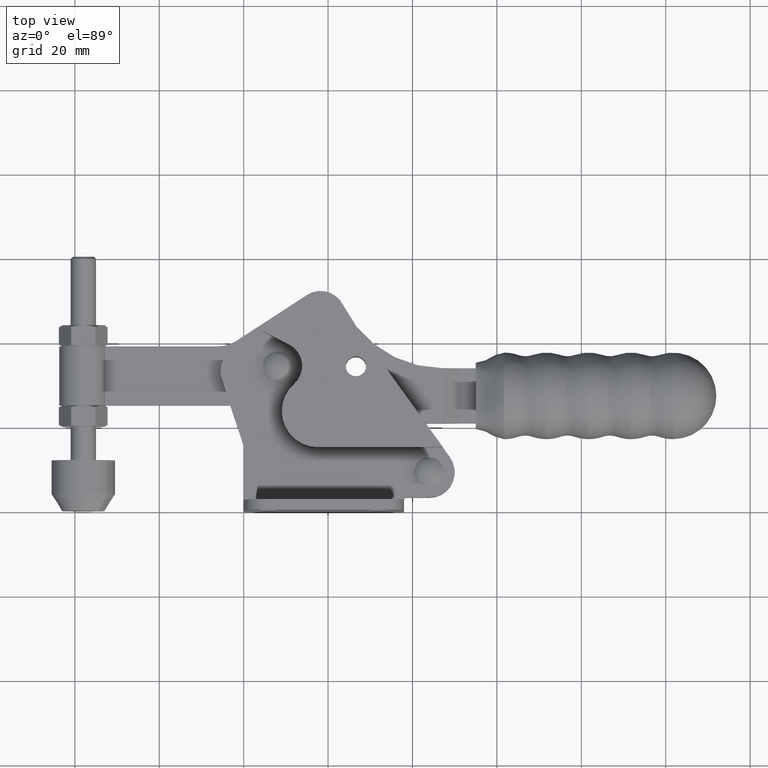
[diagram: clean part render]
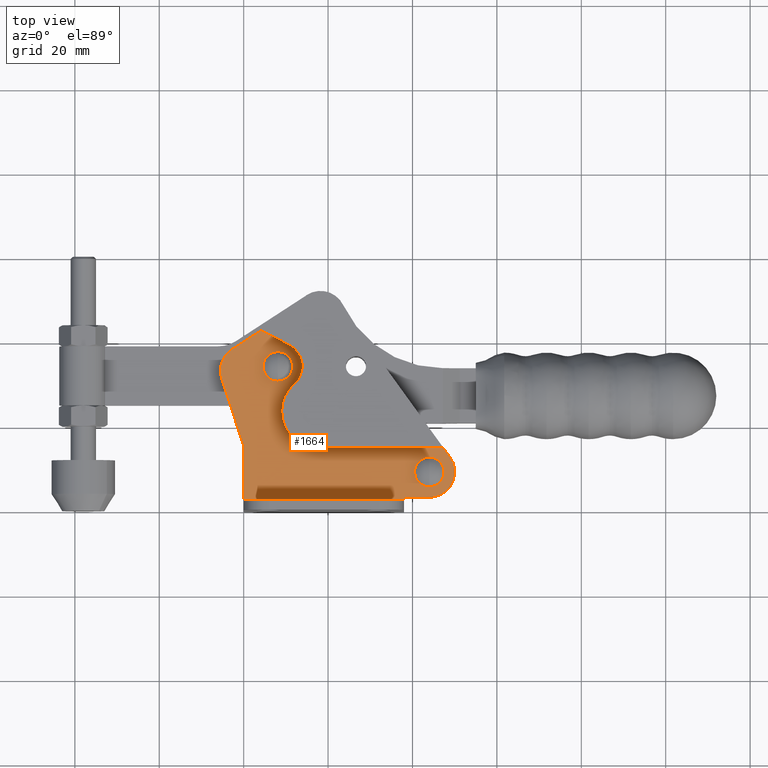
[diagram: same view with one face highlighted and labeled with its STEP entity id]
A machine part, top view. The second image highlights one B-rep face of the part: STEP entity #1664.
In plain terms, the highlighted planar face has unit normal (0, 0, 1).
Its self-contained STEP definition (entity closure, byte-faithful):
#56 = VECTOR ( 'NONE', #9937, 1000.000000000000100 ) ;
#58 = FACE_OUTER_BOUND ( 'NONE', #1267, .T. ) ;
#98 = CIRCLE ( 'NONE', #8140, 3.500000000000003100 ) ;
#116 = DIRECTION ( 'NONE',  ( 1.000000000000000000, 0.0000000000000000000, 0.0000000000000000000 ) ) ;
#123 = ORIENTED_EDGE ( 'NONE', *, *, #8248, .T. ) ;
#280 = CARTESIAN_POINT ( 'NONE',  ( 0.4999999999999726900, 33.19999999999998200, 5.000000000000000900 ) ) ;
#297 = VERTEX_POINT ( 'NONE', #5469 ) ;
#358 = DIRECTION ( 'NONE',  ( 1.000000000000000000, 0.0000000000000000000, 0.0000000000000000000 ) ) ;
#573 = LINE ( 'NONE', #3207, #4635 ) ;
#659 = EDGE_CURVE ( 'NONE', #8755, #3497, #9157, .T. ) ;
#815 = EDGE_CURVE ( 'NONE', #10548, #3677, #8370, .T. ) ;
#837 = ORIENTED_EDGE ( 'NONE', *, *, #9193, .F. ) ;
#896 = VERTEX_POINT ( 'NONE', #1263 ) ;
#1007 = VERTEX_POINT ( 'NONE', #9507 ) ;
#1109 = DIRECTION ( 'NONE',  ( 1.000000000000000000, 0.0000000000000000000, 0.0000000000000000000 ) ) ;
#1263 = CARTESIAN_POINT ( 'NONE',  ( 17.51129640379045300, 14.99999999999998600, 5.000000000000000900 ) ) ;
#1267 = EDGE_LOOP ( 'NONE', ( #10223, #123, #7517, #9885, #4937, #7709, #1524, #8971, #6254, #8271, #3843, #2996, #7690, #5909, #4685, #6601 ) ) ;
#1299 = DIRECTION ( 'NONE',  ( 0.0000000000000000000, 0.0000000000000000000, 1.000000000000000000 ) ) ;
#1318 = AXIS2_PLACEMENT_3D ( 'NONE', #9525, #4605, #10342 ) ;
#1348 = LINE ( 'NONE', #1998, #9535 ) ;
#1477 = CARTESIAN_POINT ( 'NONE',  ( 11.89754065416101400, 29.88245614035087200, 5.000000000000000900 ) ) ;
#1524 = ORIENTED_EDGE ( 'NONE', *, *, #10585, .T. ) ;
#1583 = VERTEX_POINT ( 'NONE', #8027 ) ;
#1641 = EDGE_CURVE ( 'NONE', #7242, #10133, #8717, .T. ) ;
#1664 = ADVANCED_FACE ( 'NONE', ( #2187, #8464, #58 ), #8167, .T. ) ;
#1687 = DIRECTION ( 'NONE',  ( 0.0000000000000000000, 0.0000000000000000000, 1.000000000000000000 ) ) ;
#1693 = CIRCLE ( 'NONE', #5315, 3.500000000000003100 ) ;
#1797 = AXIS2_PLACEMENT_3D ( 'NONE', #7180, #2256, #8005 ) ;
#1883 = VERTEX_POINT ( 'NONE', #2693 ) ;
#1998 = CARTESIAN_POINT ( 'NONE',  ( 0.0000000000000000000, 15.50000000000004100, 5.000000000000000900 ) ) ;
#2036 = CARTESIAN_POINT ( 'NONE',  ( 17.51129640379045300, 23.49999999999999300, 5.000000000000000900 ) ) ;
#2060 = EDGE_CURVE ( 'NONE', #896, #1583, #9891, .T. ) ;
#2069 = DIRECTION ( 'NONE',  ( -0.0000000000000000000, -0.0000000000000000000, -1.000000000000000000 ) ) ;
#2100 = CARTESIAN_POINT ( 'NONE',  ( 17.51129640379045300, 14.99999999999998600, 5.000000000000000900 ) ) ;
#2185 = LINE ( 'NONE', #8275, #56 ) ;
#2187 = FACE_BOUND ( 'NONE', #10187, .T. ) ;
#2188 = CARTESIAN_POINT ( 'NONE',  ( 8.099999999999967700, 34.19999999999998200, 4.999999999999999100 ) ) ;
#2208 = CARTESIAN_POINT ( 'NONE',  ( 8.099999999999967700, 37.69999999999998200, 4.999999999999999100 ) ) ;
#2256 = DIRECTION ( 'NONE',  ( 0.0000000000000000000, 0.0000000000000000000, 1.000000000000000000 ) ) ;
#2296 = ORIENTED_EDGE ( 'NONE', *, *, #5736, .F. ) ;
#2298 = CARTESIAN_POINT ( 'NONE',  ( -2.767834210090219600, 38.23202340767253600, 5.000000000000000900 ) ) ;
#2418 = CARTESIAN_POINT ( 'NONE',  ( 38.49999999999992200, 2.699999999999980200, 5.000000000000000900 ) ) ;
#2483 = AXIS2_PLACEMENT_3D ( 'NONE', #8283, #3376, #9122 ) ;
#2502 = EDGE_CURVE ( 'NONE', #2892, #5441, #8820, .T. ) ;
#2548 = CIRCLE ( 'NONE', #1318, 5.999999999999984900 ) ;
#2565 = CARTESIAN_POINT ( 'NONE',  ( 43.99999999999995700, 3.200000000000036100, 5.000000000000000900 ) ) ;
#2693 = CARTESIAN_POINT ( 'NONE',  ( 37.99999999999995000, 2.500000000000002200, 5.000000000000000900 ) ) ;
#2768 = VECTOR ( 'NONE', #3601, 1000.000000000000000 ) ;
#2830 = LINE ( 'NONE', #3986, #9113 ) ;
#2878 = CARTESIAN_POINT ( 'NONE',  ( 10.71952666156192400, 39.31865021947836400, 5.000000000000000900 ) ) ;
#2892 = VERTEX_POINT ( 'NONE', #1477 ) ;
#2996 = ORIENTED_EDGE ( 'NONE', *, *, #7502, .F. ) ;
#3014 = LINE ( 'NONE', #6798, #2768 ) ;
#3020 = DIRECTION ( 'NONE',  ( 1.000000000000000000, 0.0000000000000000000, 0.0000000000000000000 ) ) ;
#3188 = CARTESIAN_POINT ( 'NONE',  ( 0.0000000000000000000, 15.50000000000004100, 5.000000000000000900 ) ) ;
#3207 = CARTESIAN_POINT ( 'NONE',  ( 45.40431083775173000, 17.49999999999998900, 5.000000000000000900 ) ) ;
#3325 = VECTOR ( 'NONE', #4494, 1000.000000000000100 ) ;
#3328 = CIRCLE ( 'NONE', #4730, 3.499999999999999600 ) ;
#3337 = VECTOR ( 'NONE', #4858, 1000.000000000000000 ) ;
#3376 = DIRECTION ( 'NONE',  ( 0.0000000000000000000, 0.0000000000000000000, 1.000000000000000000 ) ) ;
#3396 = CARTESIAN_POINT ( 'NONE',  ( 8.099999999999967700, 34.19999999999998200, 5.000000000000000900 ) ) ;
#3497 = VERTEX_POINT ( 'NONE', #2208 ) ;
#3514 = EDGE_CURVE ( 'NONE', #1007, #7242, #6782, .T. ) ;
#3562 = CARTESIAN_POINT ( 'NONE',  ( 0.4999999999999726900, 33.19999999999998200, 5.000000000000000900 ) ) ;
#3579 = LINE ( 'NONE', #9425, #3325 ) ;
#3601 = DIRECTION ( 'NONE',  ( -1.027984282060337700E-014, 1.000000000000000000, -0.0000000000000000000 ) ) ;
#3677 = VERTEX_POINT ( 'NONE', #3868 ) ;
#3843 = ORIENTED_EDGE ( 'NONE', *, *, #5785, .F. ) ;
#3868 = CARTESIAN_POINT ( 'NONE',  ( -5.500000000000046200, 33.19999999999998200, 5.000000000000000900 ) ) ;
#3921 = AXIS2_PLACEMENT_3D ( 'NONE', #2036, #1687, #358 ) ;
#3986 = CARTESIAN_POINT ( 'NONE',  ( -2.775557561562891400E-014, 2.500000000000002200, 4.999999999999947600 ) ) ;
#4190 = AXIS2_PLACEMENT_3D ( 'NONE', #2418, #9830, #4927 ) ;
#4204 = DIRECTION ( 'NONE',  ( 1.000000000000000000, 0.0000000000000000000, 0.0000000000000000000 ) ) ;
#4216 = VERTEX_POINT ( 'NONE', #9903 ) ;
#4365 = VECTOR ( 'NONE', #5685, 1000.000000000000000 ) ;
#4370 = DIRECTION ( 'NONE',  ( 1.000000000000000000, 0.0000000000000000000, 0.0000000000000000000 ) ) ;
#4494 = DIRECTION ( 'NONE',  ( -0.8386705679454247200, -0.5446390350150258600, 0.0000000000000000000 ) ) ;
#4605 = DIRECTION ( 'NONE',  ( 0.0000000000000000000, 0.0000000000000000000, 1.000000000000000000 ) ) ;
#4635 = VECTOR ( 'NONE', #9781, 1000.000000000000100 ) ;
#4685 = ORIENTED_EDGE ( 'NONE', *, *, #9009, .T. ) ;
#4730 = AXIS2_PLACEMENT_3D ( 'NONE', #2188, #7938, #3020 ) ;
#4848 = CARTESIAN_POINT ( 'NONE',  ( 43.99999999999995700, 3.200000000000036100, 5.000000000000000900 ) ) ;
#4858 = DIRECTION ( 'NONE',  ( 1.000000000000000000, 0.0000000000000000000, 0.0000000000000000000 ) ) ;
#4927 = DIRECTION ( 'NONE',  ( 1.000000000000000000, 0.0000000000000000000, -0.0000000000000000000 ) ) ;
#4937 = ORIENTED_EDGE ( 'NONE', *, *, #1641, .T. ) ;
#5004 = DIRECTION ( 'NONE',  ( 0.0000000000000000000, 0.0000000000000000000, 1.000000000000000000 ) ) ;
#5271 = CIRCLE ( 'NONE', #6043, 6.000000000000018700 ) ;
#5284 = EDGE_CURVE ( 'NONE', #1883, #1007, #3014, .T. ) ;
#5315 = AXIS2_PLACEMENT_3D ( 'NONE', #6187, #1299, #7011 ) ;
#5441 = VERTEX_POINT ( 'NONE', #8696 ) ;
#5454 = VERTEX_POINT ( 'NONE', #9554 ) ;
#5469 = CARTESIAN_POINT ( 'NONE',  ( 4.112246403578490500, 42.69999999999998900, 5.000000000000000900 ) ) ;
#5560 = ORIENTED_EDGE ( 'NONE', *, *, #659, .F. ) ;
#5634 = VERTEX_POINT ( 'NONE', #3188 ) ;
#5685 = DIRECTION ( 'NONE',  ( 1.000000000000000000, 1.009293658750136300E-014, -0.0000000000000000000 ) ) ;
#5736 = EDGE_CURVE ( 'NONE', #4216, #5825, #98, .T. ) ;
#5785 = EDGE_CURVE ( 'NONE', #9778, #2892, #10439, .T. ) ;
#5803 = AXIS2_PLACEMENT_3D ( 'NONE', #3562, #9313, #4370 ) ;
#5825 = VERTEX_POINT ( 'NONE', #5923 ) ;
#5909 = ORIENTED_EDGE ( 'NONE', *, *, #815, .T. ) ;
#5923 = CARTESIAN_POINT ( 'NONE',  ( 43.99999999999996400, 12.70000000000001500, 4.999999999999999100 ) ) ;
#5977 = DIRECTION ( 'NONE',  ( 0.0000000000000000000, 0.0000000000000000000, 1.000000000000000000 ) ) ;
#6008 = CARTESIAN_POINT ( 'NONE',  ( 0.0000000000000000000, 15.50000000000004100, 5.000000000000000900 ) ) ;
#6043 = AXIS2_PLACEMENT_3D ( 'NONE', #280, #5977, #1109 ) ;
#6148 = VERTEX_POINT ( 'NONE', #8716 ) ;
#6187 = CARTESIAN_POINT ( 'NONE',  ( 43.99999999999996400, 9.200000000000015300, 4.999999999999999100 ) ) ;
#6254 = ORIENTED_EDGE ( 'NONE', *, *, #9287, .F. ) ;
#6294 = CARTESIAN_POINT ( 'NONE',  ( 8.099999999999967700, 30.69999999999998200, 4.999999999999999100 ) ) ;
#6318 = CARTESIAN_POINT ( 'NONE',  ( 38.49999999999992200, 3.199999999999980600, 5.000000000000000900 ) ) ;
#6351 = EDGE_LOOP ( 'NONE', ( #9519, #5560 ) ) ;
#6507 = EDGE_CURVE ( 'NONE', #5634, #7672, #1348, .T. ) ;
#6560 = LINE ( 'NONE', #6008, #8726 ) ;
#6601 = ORIENTED_EDGE ( 'NONE', *, *, #7004, .T. ) ;
#6775 = AXIS2_PLACEMENT_3D ( 'NONE', #10221, #2069, #7017 ) ;
#6782 = CIRCLE ( 'NONE', #6775, 0.5000000000000004400 ) ;
#6798 = CARTESIAN_POINT ( 'NONE',  ( 37.99999999999992200, 2.699999999999980200, 5.000000000000000900 ) ) ;
#6864 = CIRCLE ( 'NONE', #1797, 8.500000000000000000 ) ;
#6907 = DIRECTION ( 'NONE',  ( 0.0000000000000000000, -1.000000000000000000, 0.0000000000000000000 ) ) ;
#7004 = EDGE_CURVE ( 'NONE', #5454, #5634, #6560, .T. ) ;
#7011 = DIRECTION ( 'NONE',  ( 1.000000000000000000, 0.0000000000000000000, 0.0000000000000000000 ) ) ;
#7017 = DIRECTION ( 'NONE',  ( 1.000000000000000000, 0.0000000000000000000, 0.0000000000000000000 ) ) ;
#7180 = CARTESIAN_POINT ( 'NONE',  ( 17.51129640379045300, 23.49999999999999300, 5.000000000000000900 ) ) ;
#7242 = VERTEX_POINT ( 'NONE', #6318 ) ;
#7502 = EDGE_CURVE ( 'NONE', #297, #9778, #2185, .T. ) ;
#7517 = ORIENTED_EDGE ( 'NONE', *, *, #5284, .T. ) ;
#7616 = DIRECTION ( 'NONE',  ( 0.3121459274635701700, -0.9500341677897208300, -0.0000000000000000000 ) ) ;
#7672 = VERTEX_POINT ( 'NONE', #9395 ) ;
#7690 = ORIENTED_EDGE ( 'NONE', *, *, #8634, .T. ) ;
#7709 = ORIENTED_EDGE ( 'NONE', *, *, #8704, .T. ) ;
#7938 = DIRECTION ( 'NONE',  ( 0.0000000000000000000, 0.0000000000000000000, 1.000000000000000000 ) ) ;
#8005 = DIRECTION ( 'NONE',  ( 1.000000000000000000, 0.0000000000000000000, 0.0000000000000000000 ) ) ;
#8027 = CARTESIAN_POINT ( 'NONE',  ( 47.21114392090405700, 14.99999999999998600, 5.000000000000000900 ) ) ;
#8140 = AXIS2_PLACEMENT_3D ( 'NONE', #9902, #5004, #116 ) ;
#8167 = PLANE ( 'NONE',  #4190 ) ;
#8248 = EDGE_CURVE ( 'NONE', #7672, #1883, #2830, .T. ) ;
#8271 = ORIENTED_EDGE ( 'NONE', *, *, #2502, .F. ) ;
#8275 = CARTESIAN_POINT ( 'NONE',  ( 4.112246403578434500, 42.69999999999998900, 5.000000000000000900 ) ) ;
#8283 = CARTESIAN_POINT ( 'NONE',  ( 8.099999999999967700, 34.19999999999998200, 4.999999999999999100 ) ) ;
#8370 = CIRCLE ( 'NONE', #5803, 6.000000000000018700 ) ;
#8464 = FACE_BOUND ( 'NONE', #6351, .T. ) ;
#8634 = EDGE_CURVE ( 'NONE', #297, #10548, #3579, .T. ) ;
#8696 = CARTESIAN_POINT ( 'NONE',  ( 9.011296403790455000, 23.49999999999999300, 5.000000000000000900 ) ) ;
#8704 = EDGE_CURVE ( 'NONE', #10133, #6148, #2548, .T. ) ;
#8716 = CARTESIAN_POINT ( 'NONE',  ( 48.86289560649442600, 12.71457626469205100, 5.000000000000000900 ) ) ;
#8717 = LINE ( 'NONE', #4848, #4365 ) ;
#8726 = VECTOR ( 'NONE', #7616, 1000.000000000000100 ) ;
#8755 = VERTEX_POINT ( 'NONE', #6294 ) ;
#8820 = CIRCLE ( 'NONE', #3921, 8.500000000000000000 ) ;
#8971 = ORIENTED_EDGE ( 'NONE', *, *, #2060, .F. ) ;
#9009 = EDGE_CURVE ( 'NONE', #3677, #5454, #5271, .T. ) ;
#9113 = VECTOR ( 'NONE', #9750, 1000.000000000000000 ) ;
#9122 = DIRECTION ( 'NONE',  ( 1.000000000000000000, 0.0000000000000000000, 0.0000000000000000000 ) ) ;
#9142 = DIRECTION ( 'NONE',  ( -0.0000000000000000000, -0.0000000000000000000, -1.000000000000000000 ) ) ;
#9157 = CIRCLE ( 'NONE', #2483, 3.499999999999999600 ) ;
#9193 = EDGE_CURVE ( 'NONE', #5825, #4216, #1693, .T. ) ;
#9255 = EDGE_CURVE ( 'NONE', #3497, #8755, #3328, .T. ) ;
#9287 = EDGE_CURVE ( 'NONE', #5441, #896, #6864, .T. ) ;
#9313 = DIRECTION ( 'NONE',  ( 0.0000000000000000000, 0.0000000000000000000, 1.000000000000000000 ) ) ;
#9395 = CARTESIAN_POINT ( 'NONE',  ( 0.0000000000000000000, 2.500000000000002200, 5.000000000000000900 ) ) ;
#9425 = CARTESIAN_POINT ( 'NONE',  ( 6.530807365013268800, 44.27063185296678700, 5.000000000000000900 ) ) ;
#9507 = CARTESIAN_POINT ( 'NONE',  ( 37.99999999999992200, 2.699999999999980200, 5.000000000000000900 ) ) ;
#9519 = ORIENTED_EDGE ( 'NONE', *, *, #9255, .F. ) ;
#9525 = CARTESIAN_POINT ( 'NONE',  ( 43.99999999999995700, 9.200000000000013500, 5.000000000000000900 ) ) ;
#9535 = VECTOR ( 'NONE', #6907, 1000.000000000000000 ) ;
#9554 = CARTESIAN_POINT ( 'NONE',  ( -5.200205006738372900, 31.32712443521859700, 5.000000000000000900 ) ) ;
#9750 = DIRECTION ( 'NONE',  ( 1.000000000000000000, 0.0000000000000000000, 1.403756497007548600E-015 ) ) ;
#9778 = VERTEX_POINT ( 'NONE', #2878 ) ;
#9781 = DIRECTION ( 'NONE',  ( -0.5857627107820155800, 0.8104826010824073300, -0.0000000000000000000 ) ) ;
#9830 = DIRECTION ( 'NONE',  ( 0.0000000000000000000, 0.0000000000000000000, 1.000000000000000000 ) ) ;
#9885 = ORIENTED_EDGE ( 'NONE', *, *, #3514, .T. ) ;
#9891 = LINE ( 'NONE', #2100, #3337 ) ;
#9902 = CARTESIAN_POINT ( 'NONE',  ( 43.99999999999996400, 9.200000000000015300, 4.999999999999999100 ) ) ;
#9903 = CARTESIAN_POINT ( 'NONE',  ( 43.99999999999996400, 5.700000000000016200, 4.999999999999999100 ) ) ;
#9937 = DIRECTION ( 'NONE',  ( 0.8902000381701518100, -0.4555698541846905900, 0.0000000000000000000 ) ) ;
#10133 = VERTEX_POINT ( 'NONE', #2565 ) ;
#10187 = EDGE_LOOP ( 'NONE', ( #837, #2296 ) ) ;
#10221 = CARTESIAN_POINT ( 'NONE',  ( 38.49999999999992200, 2.699999999999980200, 5.000000000000000900 ) ) ;
#10223 = ORIENTED_EDGE ( 'NONE', *, *, #6507, .T. ) ;
#10334 = AXIS2_PLACEMENT_3D ( 'NONE', #3396, #9142, #4204 ) ;
#10342 = DIRECTION ( 'NONE',  ( 1.000000000000000000, 0.0000000000000000000, 0.0000000000000000000 ) ) ;
#10439 = CIRCLE ( 'NONE', #10334, 5.750000000000025800 ) ;
#10548 = VERTEX_POINT ( 'NONE', #2298 ) ;
#10585 = EDGE_CURVE ( 'NONE', #6148, #1583, #573, .T. ) ;